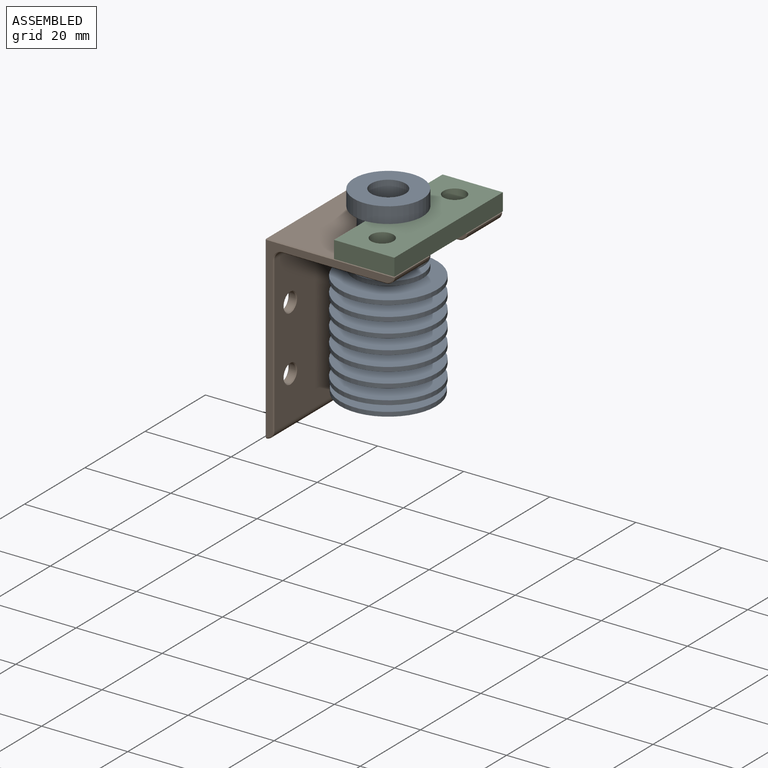
[diagram: assembled view]
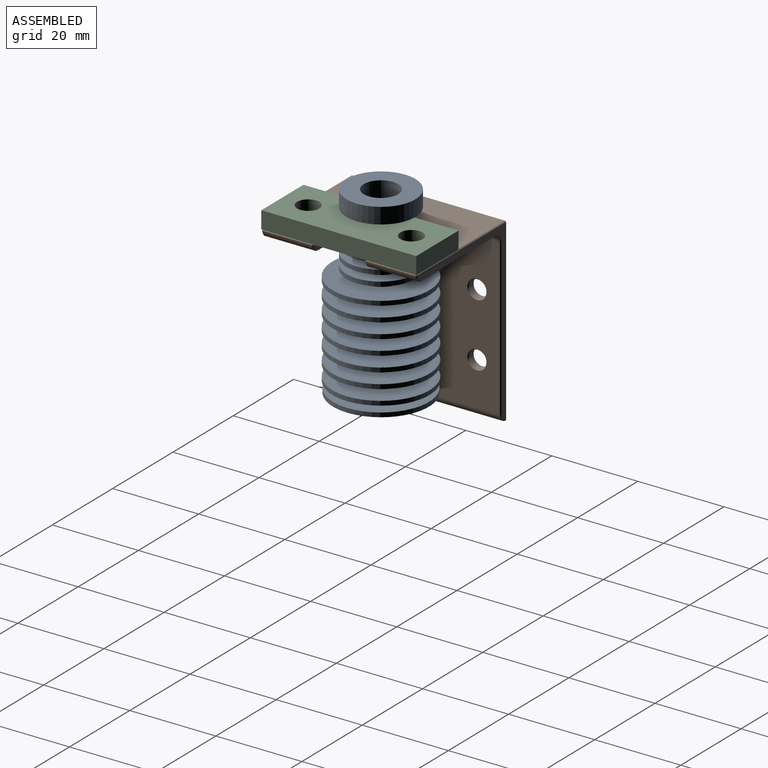
[diagram: assembled view, second angle]
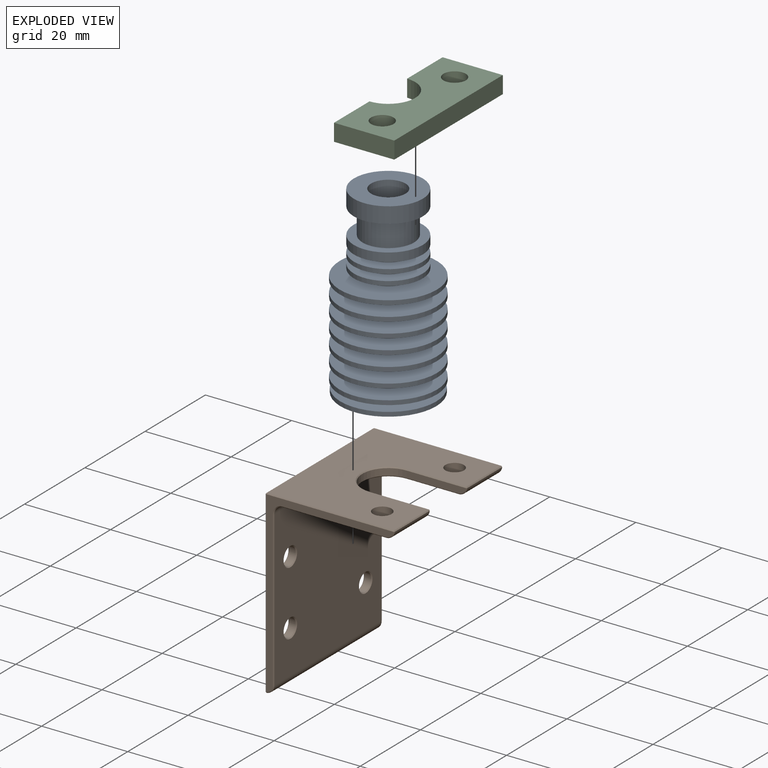
[diagram: exploded view]
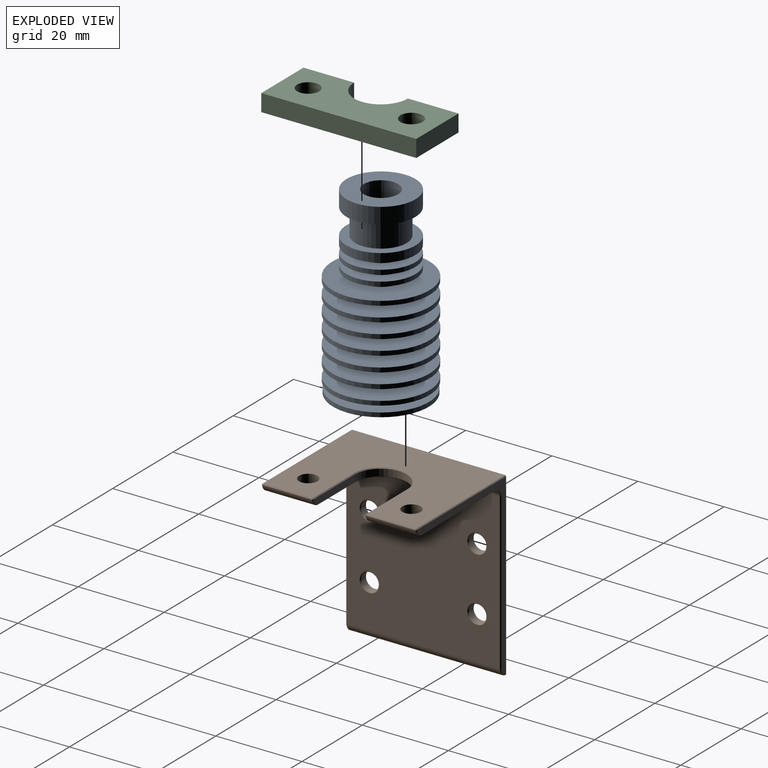
[diagram: exploded view, second angle]
ASSEMBLY  parts=3 mates=2
PART A: 52 faces, bbox 22.6x22.6x42.7 mm
  f0: cylinder r=8mm len=16mm, axis (0,0,1), area 100.5mm2, adj f1,f51
  f1: plane 16x16mm, normal (0,0,-1), area 122.5mm2, adj f0,f2
  f2: cylinder r=5mm len=10mm, axis (0,0,1), area 47.1mm2, adj f1,f3
  f3: plane 16x16mm, normal (0,0,1), area 122.5mm2, adj f2,f4
  f4: cylinder r=8mm len=16mm, axis (0,0,1), area 50.3mm2, adj f3,f5
  f5: plane 16x16mm, normal (0,0,-1), area 122.5mm2, adj f4,f6
  f6: cylinder r=5mm len=10mm, axis (0,0,1), area 47.1mm2, adj f5,f7
  f7: plane 16x16mm, normal (0,0,1), area 122.5mm2, adj f6,f8
  f8: cylinder r=8mm len=16mm, axis (0,0,1), area 50.3mm2, adj f7,f9
  f9: plane 16x16mm, normal (0,0,-1), area 122.5mm2, adj f8,f10
  f10: cylinder r=5mm len=10mm, axis (0,0,1), area 47.1mm2, adj f9,f11
  f11: plane 22.58x22.58mm, normal (0,0,1), area 322mm2, adj f10,f12
  f12: cylinder r=11.29mm len=22.58mm, axis (0,0,1), area 70.9mm2, adj f11,f13
  f13: plane 22.58x22.58mm, normal (0,0,-1), area 287.5mm2, adj f12,f14
  f14: cylinder r=6mm len=12mm, axis (0,0,1), area 94.2mm2, adj f13,f15
  f15: plane 22.58x22.58mm, normal (0,0,1), area 287.5mm2, adj f14,f16
  f16: cylinder r=11.29mm len=22.58mm, axis (0,0,1), area 70.9mm2, adj f15,f17
  f17: plane 22.58x22.58mm, normal (0,0,-1), area 287.5mm2, adj f16,f18
  f18: cylinder r=6mm len=12mm, axis (0,0,1), area 94.2mm2, adj f17,f19
  f19: plane 22.58x22.58mm, normal (0,0,1), area 287.5mm2, adj f18,f20
  f20: cylinder r=11.29mm len=22.58mm, axis (0,0,1), area 70.9mm2, adj f19,f21
  f21: plane 22.58x22.58mm, normal (0,0,-1), area 287.5mm2, adj f20,f22
  f22: cylinder r=6mm len=12mm, axis (0,0,1), area 94.2mm2, adj f21,f23
  f23: plane 22.58x22.58mm, normal (0,0,1), area 287.5mm2, adj f22,f24
  f24: cylinder r=11.29mm len=22.58mm, axis (0,0,1), area 70.9mm2, adj f23,f25
  f25: plane 22.58x22.58mm, normal (0,0,-1), area 287.5mm2, adj f24,f26
  f26: cylinder r=6mm len=12mm, axis (0,0,1), area 94.2mm2, adj f25,f27
  f27: plane 22.58x22.58mm, normal (0,0,1), area 287.5mm2, adj f26,f28
  f28: cylinder r=11.29mm len=22.58mm, axis (0,0,1), area 70.9mm2, adj f27,f29
  f29: plane 22.58x22.58mm, normal (0,0,-1), area 287.5mm2, adj f28,f30
  f30: cylinder r=6mm len=12mm, axis (0,0,1), area 94.2mm2, adj f29,f31
  f31: plane 22.58x22.58mm, normal (0,0,1), area 287.5mm2, adj f30,f32
  f32: cylinder r=11.29mm len=22.58mm, axis (0,0,1), area 70.9mm2, adj f31,f33
  f33: plane 22.58x22.58mm, normal (0,0,-1), area 287.5mm2, adj f32,f34
  f34: cylinder r=6mm len=12mm, axis (0,0,1), area 94.2mm2, adj f33,f35
  f35: plane 22.58x22.58mm, normal (0,0,1), area 287.5mm2, adj f34,f36
  f36: cylinder r=11.29mm len=22.58mm, axis (0,0,1), area 70.9mm2, adj f35,f37
  f37: plane 22.58x22.58mm, normal (0,0,-1), area 287.5mm2, adj f36,f38
  f38: cylinder r=6mm len=12mm, axis (0,0,1), area 56.5mm2, adj f37,f39
  f39: plane 22.3x22.3mm, normal (0,0,1), area 277.5mm2, adj f38,f40
  f40: cylinder r=11.15mm len=22.3mm, axis (0,0,1), area 70.1mm2, adj f39,f41
  f41: plane 22.3x22.3mm, normal (0,0,-1), area 360.4mm2, adj f40,f42
  f42: cylinder r=3.1mm len=14.8mm, axis (0,0,1), area 288.3mm2, adj f41,f43
  f43: cone r=3.1mm half-angle=44.5deg, axis (0,0,-1), area 25.1mm2, adj f42,f44
  f44: cylinder r=2mm len=18.28mm, axis (0,0,1), area 229.7mm2, adj f43,f45
  f45: cone r=4mm half-angle=63.4deg, axis (0,0,1), area 42.1mm2, adj f44,f46
  f46: cylinder r=4mm len=8mm, axis (0,0,1), area 188.5mm2, adj f45,f47
  f47: plane 16x16mm, normal (0,0,1), area 150.8mm2, adj f46,f48
  f48: cylinder r=8mm len=16mm, axis (0,0,1), area 186mm2, adj f47,f49
  f49: plane 16x16mm, normal (0,0,-1), area 88mm2, adj f48,f50
  f50: cylinder r=6mm len=12mm, axis (0,0,1), area 226.2mm2, adj f49,f51
  f51: plane 16x16mm, normal (0,0,1), area 88mm2, adj f0,f50
PART B: 61 faces, bbox 30x36x42 mm
  f0: plane 35.6x24mm, normal (0,0,-1), area 615.1mm2, adj f2,f8,f9,f21,f36,f44,f47,f49
  f1: plane 35.6x29.59mm, normal (0,0,1), area 791.8mm2, adj f26,f31,f34,f38,f39,f42,f45,f46
  f2: cylinder r=2mm len=11.58mm, axis (0,1,0), area 33.8mm2, adj f0,f40,f46,f50
  f3: plane 36x35.6mm, normal (1,0,0), area 1218mm2, adj f7,f8,f17,f29,f51,f52,f53,f54
  f4: plane 41.59x35.6mm, normal (-1,0,0), area 1416.9mm2, adj f22,f23,f31,f32,f55,f56,f57,f58
  f5: plane 41.59x29.59mm, normal (0,-1,0), area 111mm2, adj f17,f18,f19,f21,f22,f25,f26
  f6: plane 41.59x29.59mm, normal (0,1,0), area 111mm2, adj f24,f29,f32,f33,f36,f39,f40
  f7: cylinder r=2mm len=35.6mm, axis (0,1,0), area 103.9mm2, adj f3,f18,f23,f24
  f8: cylinder r=2mm len=35.6mm, axis (0,-1,0), area 111.8mm2, adj f0,f3,f19,f33
  f9: cylinder r=2mm len=11.58mm, axis (0,1,0), area 33.8mm2, adj f0,f25,f34,f41
  f10: plane 13.79x1.6mm, normal (0,-1,0), area 21.4mm2, adj f11,f45,f49,f50
  f11: cylinder r=6.03mm len=12.05mm, axis (0,0,1), area 30.3mm2, adj f10,f12,f42,f47
  f12: plane 13.79x1.6mm, normal (0,1,0), area 21.4mm2, adj f11,f38,f41,f44
  f13: cylinder r=2.05mm len=4.1mm, axis (-1,0,0), area 20.6mm2, adj f54,f58
  f14: cylinder r=2.05mm len=4.1mm, axis (-1,0,0), area 20.6mm2, adj f53,f57
  f15: cylinder r=2.05mm len=4.1mm, axis (-1,0,0), area 20.6mm2, adj f52,f56
  f16: cylinder r=2.05mm len=4.1mm, axis (-1,0,0), area 20.6mm2, adj f51,f55
  f17: plane 36x0.2mm, normal (0.71,-0.71,0), area 10.2mm2, adj f3,f5,f18,f19
  f18: cone r=1.8mm half-angle=45deg, axis (0,1,0), area 0.8mm2, adj f5,f7,f17,f20
  f19: cone r=2.2mm half-angle=45deg, axis (0,-1,0), area 0.9mm2, adj f5,f8,f17,f21
  f20: plane 0.22x0.2mm, normal (-0.55,-0.55,-0.62), area 0mm2, adj f18,f22,f23
  f21: plane 24x0.2mm, normal (0,-0.71,-0.71), area 6.8mm2, adj f0,f5,f19,f25
  f22: plane 41.59x0.2mm, normal (-0.71,-0.71,0), area 11.8mm2, adj f4,f5,f20,f27
  f23: plane 35.6x0.22mm, normal (-0.67,0,-0.75), area 10.6mm2, adj f4,f7,f20,f28
  f24: cone r=1.8mm half-angle=45deg, axis (0,-1,0), area 0.8mm2, adj f6,f7,f28,f29
  f25: cone r=1.8mm half-angle=45deg, axis (0,1,0), area 0.8mm2, adj f5,f9,f21,f30
  f26: plane 29.59x0.2mm, normal (0,-0.71,0.71), area 8.4mm2, adj f1,f5,f27,f30
  f27: plane 0.2x0.2mm, normal (-0.58,-0.58,0.58), area 0mm2, adj f22,f26,f31
  f28: plane 0.22x0.2mm, normal (-0.55,0.55,-0.62), area 0mm2, adj f23,f24,f32
  f29: plane 36x0.2mm, normal (0.71,0.71,0), area 10.2mm2, adj f3,f6,f24,f33
  f30: plane 0.22x0.2mm, normal (0.62,-0.55,0.55), area 0mm2, adj f25,f26,f34
  f31: plane 35.6x0.2mm, normal (-0.71,0,0.71), area 10.1mm2, adj f1,f4,f27,f35
  f32: plane 41.59x0.2mm, normal (-0.71,0.71,0), area 11.8mm2, adj f4,f6,f28,f35
  f33: cone r=2.2mm half-angle=45deg, axis (0,1,0), area 0.9mm2, adj f6,f8,f29,f36
  f34: plane 11.58x0.22mm, normal (0.75,0,0.67), area 3.5mm2, adj f1,f9,f30,f37
  f35: plane 0.2x0.2mm, normal (-0.58,0.58,0.58), area 0mm2, adj f31,f32,f39
  f36: plane 24x0.2mm, normal (0,0.71,-0.71), area 6.8mm2, adj f0,f6,f33,f40
  f37: plane 0.22x0.2mm, normal (0.62,0.55,0.55), area 0mm2, adj f34,f38,f41
  f38: plane 13.79x0.2mm, normal (0,0.71,0.71), area 3.9mm2, adj f1,f12,f37,f42
  f39: plane 29.59x0.2mm, normal (0,0.71,0.71), area 8.4mm2, adj f1,f6,f35,f43
  f40: cone r=1.8mm half-angle=45deg, axis (0,-1,0), area 0.8mm2, adj f2,f6,f36,f43
  f41: cone r=1.8mm half-angle=45deg, axis (0,-1,0), area 0.8mm2, adj f9,f12,f37,f44
  f42: cone r=6.03mm half-angle=45deg, axis (0,0,1), area 5.4mm2, adj f1,f11,f38,f45
  f43: plane 0.22x0.2mm, normal (0.62,0.55,0.55), area 0mm2, adj f39,f40,f46
  f44: plane 12x0.2mm, normal (0,0.71,-0.71), area 3.4mm2, adj f0,f12,f41,f47
  f45: plane 13.79x0.2mm, normal (0,-0.71,0.71), area 3.9mm2, adj f1,f10,f42,f48
  f46: plane 11.58x0.22mm, normal (0.75,0,0.67), area 3.5mm2, adj f1,f2,f43,f48
  f47: cone r=6.03mm half-angle=45deg, axis (0,0,-1), area 5.4mm2, adj f0,f11,f44,f49
  f48: plane 0.22x0.2mm, normal (0.62,-0.55,0.55), area 0mm2, adj f45,f46,f50
  f49: plane 12x0.2mm, normal (0,-0.71,-0.71), area 3.4mm2, adj f0,f10,f47,f50
  f50: cone r=2mm half-angle=45deg, axis (0,1,0), area 0.8mm2, adj f2,f10,f48,f49
  f51: cone r=2.05mm half-angle=45deg, axis (1,0,0), area 3.8mm2, adj f3,f16
  f52: cone r=2.05mm half-angle=45deg, axis (1,0,0), area 3.8mm2, adj f3,f15
  f53: cone r=2.05mm half-angle=45deg, axis (1,0,0), area 3.8mm2, adj f3,f14
  f54: cone r=2.05mm half-angle=45deg, axis (1,0,0), area 3.8mm2, adj f3,f13
  f55: cone r=2.05mm half-angle=45deg, axis (-1,0,0), area 3.8mm2, adj f4,f16
  f56: cone r=2.05mm half-angle=45deg, axis (-1,0,0), area 3.8mm2, adj f4,f15
  f57: cone r=2.05mm half-angle=45deg, axis (-1,0,0), area 3.8mm2, adj f4,f14
  f58: cone r=2.05mm half-angle=45deg, axis (-1,0,0), area 3.8mm2, adj f4,f13
  f59: cylinder r=2.15mm len=4.3mm, axis (0,0,1), area 27mm2, adj f0,f1
  f60: cylinder r=2.15mm len=4.3mm, axis (0,0,1), area 27mm2, adj f0,f1
PART C: 10 faces, bbox 14x36x4 mm
  f0: plane 14x4mm, normal (0,1,0), area 56mm2, adj f1,f7,f8,f9
  f1: plane 11.75x4mm, normal (-1,0,0), area 47mm2, adj f0,f2,f8,f9
  f2: cylinder r=6.25mm len=12.5mm, axis (0,0,-1), area 78.5mm2, adj f1,f3,f8,f9
  f3: plane 11.75x4mm, normal (-1,0,0), area 47mm2, adj f2,f4,f8,f9
  f4: plane 14x4mm, normal (0,-1,0), area 56mm2, adj f3,f7,f8,f9
  f5: cylinder r=2.6mm len=5.2mm, axis (0,0,-1), area 65.3mm2, adj f8,f9
  f6: cylinder r=2.6mm len=5.2mm, axis (0,0,-1), area 65.3mm2, adj f8,f9
  f7: plane 36x4mm, normal (1,0,0), area 144mm2, adj f0,f4,f8,f9
  f8: plane 36x14mm, normal (0,0,1), area 400.2mm2, adj f0,f1,f2,f3,f4,f5,f6,f7
  f9: plane 36x14mm, normal (0,0,-1), area 400.2mm2, adj f0,f1,f2,f3,f4,f5,f6,f7
PLACE A t=(31.7,-7.16,-3.64)mm
PLACE B t=(-32.46,-7.16,-16.62)mm
PLACE C t=(-63.95,-21.29,25.38)mm
MATE fastened C.f5 <-> B.f59  axis (0,0,-1) through (-9.46,4.84,25.38)mm
MATE fastened A.f0 <-> B.f11  axis (0,0,1) through (-16.46,-7.16,23.58)mm
